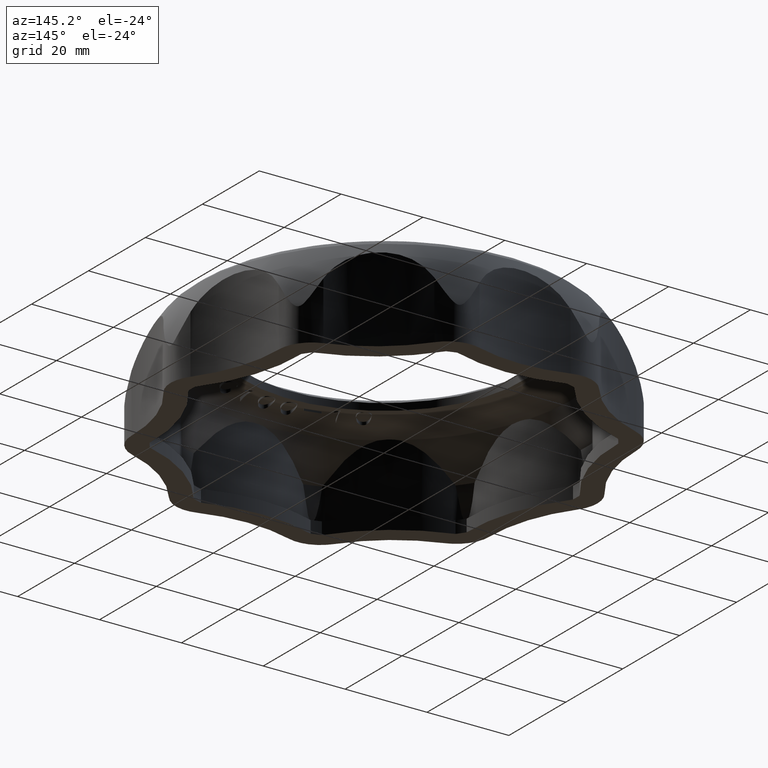
[diagram: clean part render]
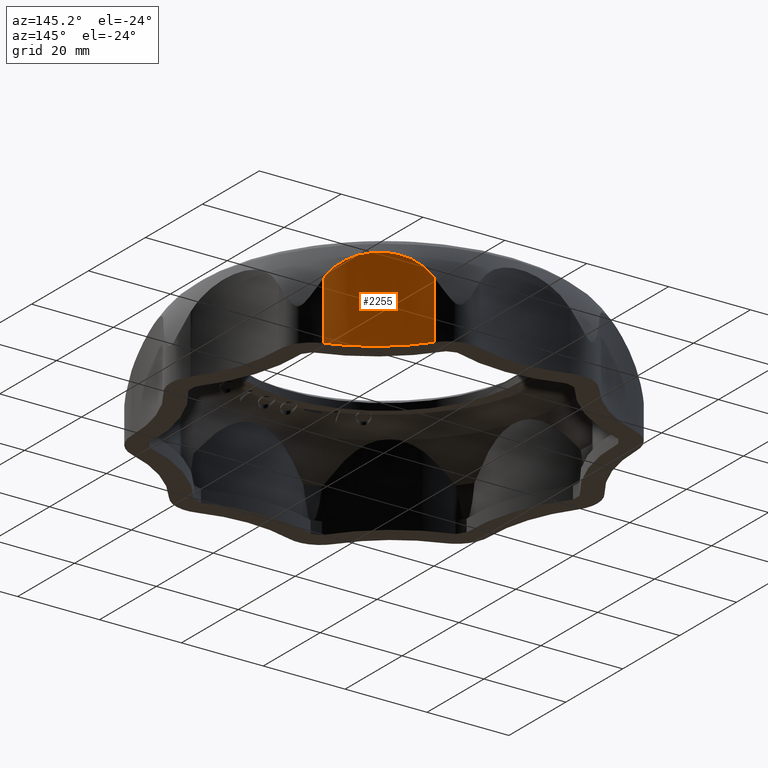
[diagram: same view with one face highlighted and labeled with its STEP entity id]
A machine part, auxiliary view. The second image highlights one B-rep face of the part: STEP entity #2255.
In plain terms, the highlighted cylindrical surface (partial cylindrical patch) has radius 35.5 mm, axis along (0, 0, -1).
Its self-contained STEP definition (entity closure, byte-faithful):
#2255 = ADVANCED_FACE( '', ( #6652 ), #6653, .F. );
#6652 = FACE_OUTER_BOUND( '', #11083, .T. );
#6653 = CYLINDRICAL_SURFACE( '', #11084, 35.5000000000000 );
#11083 = EDGE_LOOP( '', ( #30502, #30503, #30504, #30505 ) );
#11084 = AXIS2_PLACEMENT_3D( '', #30506, #30507, #30508 );
#30502 = ORIENTED_EDGE( '', *, *, #32673, .F. );
#30503 = ORIENTED_EDGE( '', *, *, #30567, .T. );
#30504 = ORIENTED_EDGE( '', *, *, #36950, .T. );
#30505 = ORIENTED_EDGE( '', *, *, #30513, .T. );
#30506 = CARTESIAN_POINT( '', ( 48.9438168933984, 67.3653921632483, -149.023779459072 ) );
#30507 = DIRECTION( '', ( 0.000000000000000, 0.000000000000000, -1.00000000000000 ) );
#30508 = DIRECTION( '', ( 0.806287425998606, 0.591523952749627, 0.000000000000000 ) );
#30513 = EDGE_CURVE( '', #36960, #36958, #36961, .T. );
#30567 = EDGE_CURVE( '', #37068, #37066, #37069, .F. );
#32673 = EDGE_CURVE( '', #37068, #36958, #41176, .T. );
#36950 = EDGE_CURVE( '', #37066, #36960, #47688, .T. );
#36958 = VERTEX_POINT( '', #47766 );
#36960 = VERTEX_POINT( '', #47805 );
#36961 = B_SPLINE_CURVE_WITH_KNOTS( '', 3, ( #47806, #47807, #47808, #47809, #47810, #47811, #47812, #47813, #47814, #47815, #47816, #47817, #47818, #47819, #47820, #47821, #47822, #47823, #47824, #47825, #47826, #47827, #47828, #47829, #47830, #47831, #47832, #47833, #47834, #47835, #47836, #47837, #47838, #47839 ), .UNSPECIFIED., .F., .F., ( 4, 2, 2, 2, 2, 2, 2, 2, 2, 2, 2, 2, 2, 2, 2, 2, 4 ), ( 3.82921886032831E-007, 0.00338027250036142, 0.00422524489498028, 0.00507021728959913, 0.00676016207883683, 0.00845010686807453, 0.0101400516573122, 0.0135199412357876, 0.0143649136304065, 0.0152098860250254, 0.0168998308142631, 0.0185897756035008, 0.0202797203927386, 0.0219696651819763, 0.0236596099712141, 0.0253495547604518, 0.0270394995496895 ), .UNSPECIFIED. );
#37066 = VERTEX_POINT( '', #48504 );
#37068 = VERTEX_POINT( '', #48506 );
#37069 = CIRCLE( '', #48507, 35.5000000000000 );
#41176 = LINE( '', #59079, #59080 );
#47688 = LINE( '', #75300, #75301 );
#47766 = CARTESIAN_POINT( '', ( 38.1301182403996, 33.5524668026390, 14.2109726472726 ) );
#47805 = CARTESIAN_POINT( '', ( 20.1274332901444, 46.6321812196890, 14.2109741168409 ) );
#47806 = CARTESIAN_POINT( '', ( 20.1274332901445, 46.6321812196891, 14.2109741168409 ) );
#47807 = CARTESIAN_POINT( '', ( 20.4882544066781, 46.1306882413709, 15.1699877221941 ) );
#47808 = CARTESIAN_POINT( '', ( 20.9158010596789, 45.5632303441597, 16.0460447477139 ) );
#47809 = CARTESIAN_POINT( '', ( 21.5544428039493, 44.7797095808959, 17.0317263565945 ) );
#47810 = CARTESIAN_POINT( '', ( 21.6874466601327, 44.6192613900825, 17.2233334260390 ) );
#47811 = CARTESIAN_POINT( '', ( 21.9648268213233, 44.2909413976572, 17.5950811447488 ) );
#47812 = CARTESIAN_POINT( '', ( 22.1096913693179, 44.1225280873154, 17.7757256047114 ) );
#47813 = CARTESIAN_POINT( '', ( 22.5566085378481, 43.6131432680726, 18.2928194868204 ) );
#47814 = CARTESIAN_POINT( '', ( 22.8721400957322, 43.2665638058993, 18.6064372383427 ) );
#47815 = CARTESIAN_POINT( '', ( 23.5411358191200, 42.5623751395589, 19.1718109239586 ) );
#47816 = CARTESIAN_POINT( '', ( 23.8945843740973, 42.2047637462188, 19.4235835989605 ) );
#47817 = CARTESIAN_POINT( '', ( 24.6434948575431, 41.4807322060542, 19.8630269759882 ) );
#47818 = CARTESIAN_POINT( '', ( 25.0422848689987, 41.1115313472438, 20.0515178961568 ) );
#47819 = CARTESIAN_POINT( '', ( 26.2710094869318, 40.0270021640650, 20.5004332473807 ) );
#47820 = CARTESIAN_POINT( '', ( 27.1394341782158, 39.3275578887288, 20.6529771210242 ) );
#47821 = CARTESIAN_POINT( '', ( 28.2925652098521, 38.4888076625226, 20.6551297137373 ) );
#47822 = CARTESIAN_POINT( '', ( 28.5258216937375, 38.3234293069621, 20.6458823271217 ) );
#47823 = CARTESIAN_POINT( '', ( 28.9915554904403, 38.0015130014735, 20.6085737743131 ) );
#47824 = CARTESIAN_POINT( '', ( 29.2248912786133, 37.8443457965711, 20.5805245796024 ) );
#47825 = CARTESIAN_POINT( '', ( 29.9261801053382, 37.3838592648599, 20.4686882253170 ) );
#47826 = CARTESIAN_POINT( '', ( 30.3954298847072, 37.0915392900492, 20.3573343920840 ) );
#47827 = CARTESIAN_POINT( '', ( 31.3363559062008, 36.5347881147286, 20.0605751214613 ) );
#47828 = CARTESIAN_POINT( '', ( 31.8107060490910, 36.2690947124206, 19.8734710668459 ) );
#47829 = CARTESIAN_POINT( '', ( 32.7336329346112, 35.7781615411131, 19.4351432211042 ) );
#47830 = CARTESIAN_POINT( '', ( 33.1850155120437, 35.5511044664075, 19.1834345737354 ) );
#47831 = CARTESIAN_POINT( '', ( 34.0665495872544, 35.1294550722332, 18.6167771007226 ) );
#47832 = CARTESIAN_POINT( '', ( 34.4981868306691, 34.9342416096811, 18.3005623286150 ) );
#47833 = CARTESIAN_POINT( '', ( 35.3315458307424, 34.5757317402713, 17.6094910284731 ) );
#47834 = CARTESIAN_POINT( '', ( 35.7283074851606, 34.4144576013574, 17.2390700370152 ) );
#47835 = CARTESIAN_POINT( '', ( 36.4829148964149, 34.1217506833681, 16.4514966345663 ) );
#47836 = CARTESIAN_POINT( '', ( 36.8407511871699, 33.9903381034356, 16.0343282328177 ) );
#47837 = CARTESIAN_POINT( '', ( 37.5169970795584, 33.7528019338902, 15.1544131419183 ) );
#47838 = CARTESIAN_POINT( '', ( 37.8356826060001, 33.6466301496179, 14.6908244367659 ) );
#47839 = CARTESIAN_POINT( '', ( 38.1301182403995, 33.5524668026390, 14.2109726472726 ) );
#48504 = CARTESIAN_POINT( '', ( 20.1274332901444, 46.6321812196890, -0.000203932499397846 ) );
#48506 = CARTESIAN_POINT( '', ( 38.1301182403996, 33.5524668026390, -0.000203932499397846 ) );
#48507 = AXIS2_PLACEMENT_3D( '', #75416, #75417, #75418 );
#59079 = CARTESIAN_POINT( '', ( 38.1301182403996, 33.5524668026390, -149.023779459072 ) );
#59080 = VECTOR( '', #75689, 1000.00000000000 );
#75300 = CARTESIAN_POINT( '', ( 20.1274332901444, 46.6321812196890, -149.023779459072 ) );
#75301 = VECTOR( '', #77739, 1000.00000000000 );
#75416 = CARTESIAN_POINT( '', ( 48.9438168933984, 67.3653921632483, -0.000203932499397846 ) );
#75417 = DIRECTION( '', ( -3.93122838974283E-017, -7.71547013724937E-017, 1.00000000000000 ) );
#75418 = DIRECTION( '', ( 0.951056516295153, 0.309016994374947, 6.12303176911189E-017 ) );
#75689 = DIRECTION( '', ( 0.000000000000000, 0.000000000000000, 1.00000000000000 ) );
#77739 = DIRECTION( '', ( 0.000000000000000, 0.000000000000000, 1.00000000000000 ) );